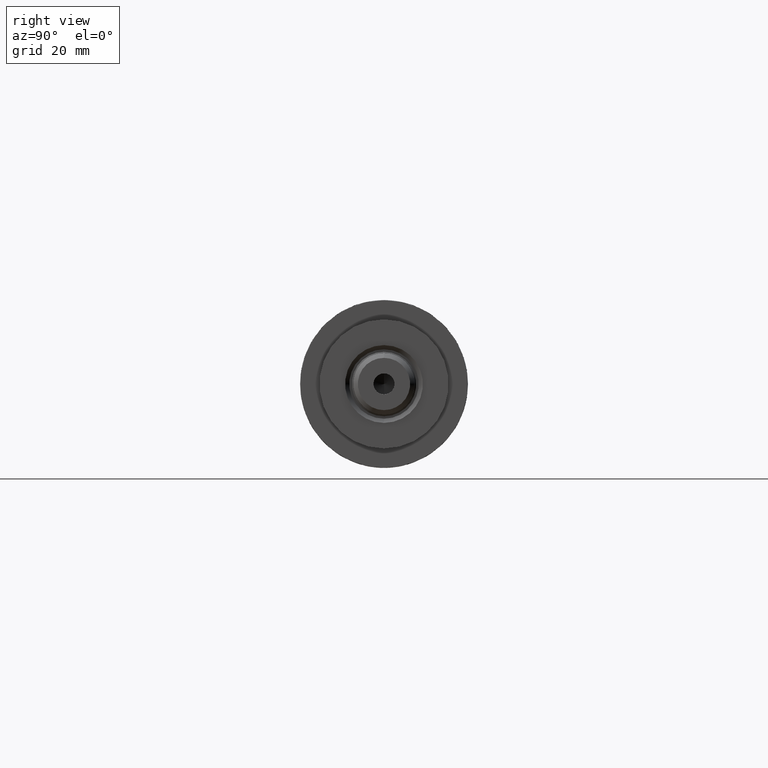
[diagram: clean part render]
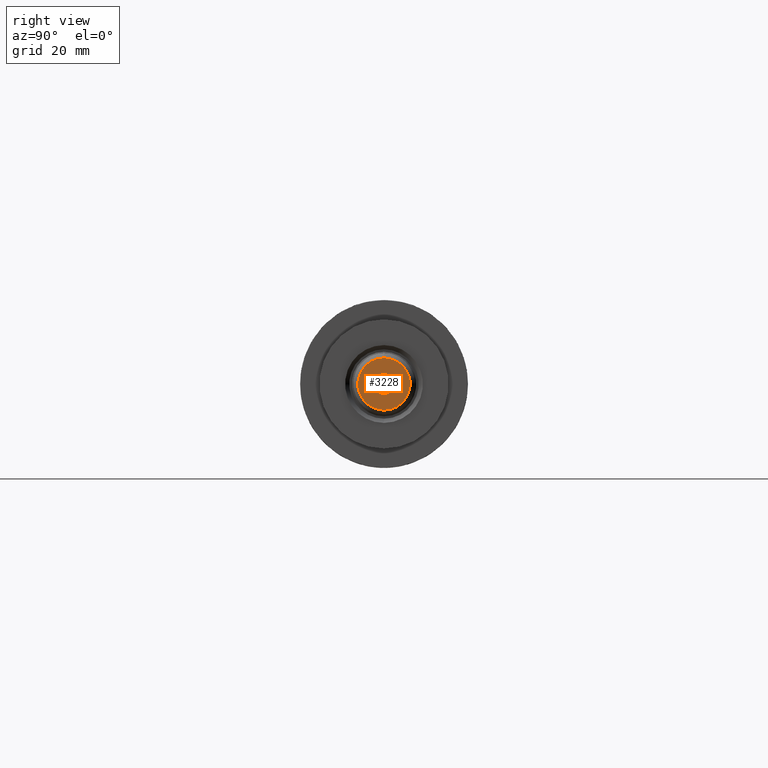
[diagram: same view with one face highlighted and labeled with its STEP entity id]
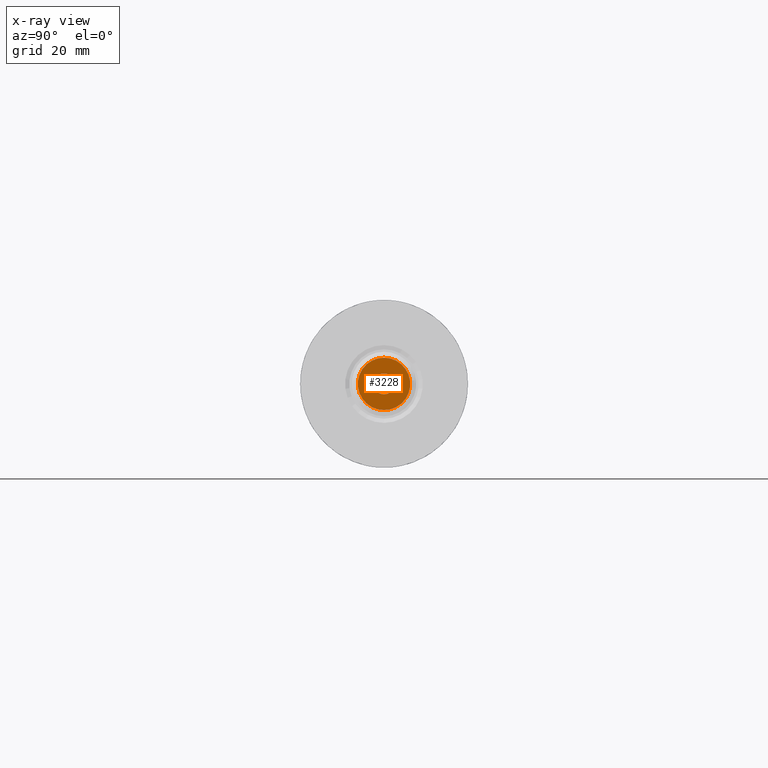
[diagram: x-ray of the same camera — body ghosted, the highlighted face saturated]
A machine part, right view. The second image highlights one B-rep face of the part: STEP entity #3228.
The next image is the same camera in x-ray: the body ghosted, the highlighted face saturated — about 0% of this face is hidden behind the body in this view.
In plain terms, the highlighted planar face has unit normal (1, 0, -0).
Its self-contained STEP definition (entity closure, byte-faithful):
#44 = DIRECTION ( 'NONE',  ( 1.000000000000000000, 0.000000000000000000, 0.000000000000000000 ) ) ;
#129 = CARTESIAN_POINT ( 'NONE',  ( 0.000000000000000000, 0.000000000000000000, 179.6000000000000512 ) ) ;
#333 = VERTEX_POINT ( 'NONE', #5140 ) ;
#343 = EDGE_LOOP ( 'NONE', ( #773, #4856 ) ) ;
#393 = DIRECTION ( 'NONE',  ( 1.000000000000000000, 0.000000000000000000, 0.000000000000000000 ) ) ;
#437 = DIRECTION ( 'NONE',  ( -0.000000000000000000, -0.000000000000000000, 1.000000000000000000 ) ) ;
#450 = CARTESIAN_POINT ( 'NONE',  ( -3.249999999999998224, 3.980102097228895766E-16, 179.6000000000000512 ) ) ;
#577 = CARTESIAN_POINT ( 'NONE',  ( 0.000000000000000000, 0.000000000000000000, 179.6000000000000512 ) ) ;
#773 = ORIENTED_EDGE ( 'NONE', *, *, #2924, .T. ) ;
#827 = CIRCLE ( 'NONE', #1494, 8.099999999999996092 ) ;
#982 = AXIS2_PLACEMENT_3D ( 'NONE', #129, #2050, #4251 ) ;
#991 = ORIENTED_EDGE ( 'NONE', *, *, #5185, .F. ) ;
#994 = CIRCLE ( 'NONE', #3425, 3.249999999999998224 ) ;
#1188 = CARTESIAN_POINT ( 'NONE',  ( 0.000000000000000000, 0.000000000000000000, 179.6000000000000512 ) ) ;
#1240 = FACE_BOUND ( 'NONE', #4510, .T. ) ;
#1435 = CARTESIAN_POINT ( 'NONE',  ( -8.099999999999996092, 0.000000000000000000, 179.6000000000000512 ) ) ;
#1492 = CIRCLE ( 'NONE', #4433, 8.099999999999996092 ) ;
#1494 = AXIS2_PLACEMENT_3D ( 'NONE', #1188, #1920, #393 ) ;
#1569 = DIRECTION ( 'NONE',  ( 1.000000000000000000, 0.000000000000000000, 0.000000000000000000 ) ) ;
#1908 = CARTESIAN_POINT ( 'NONE',  ( 0.000000000000000000, 0.000000000000000000, 179.6000000000000512 ) ) ;
#1920 = DIRECTION ( 'NONE',  ( 0.000000000000000000, 0.000000000000000000, 1.000000000000000000 ) ) ;
#2050 = DIRECTION ( 'NONE',  ( 0.000000000000000000, 0.000000000000000000, 1.000000000000000000 ) ) ;
#2088 = CARTESIAN_POINT ( 'NONE',  ( 3.249999999999998224, 0.000000000000000000, 179.6000000000000512 ) ) ;
#2123 = FACE_OUTER_BOUND ( 'NONE', #343, .T. ) ;
#2447 = PLANE ( 'NONE',  #982 ) ;
#2667 = VERTEX_POINT ( 'NONE', #2088 ) ;
#2924 = EDGE_CURVE ( 'NONE', #4850, #333, #827, .T. ) ;
#3228 = ADVANCED_FACE ( 'NONE', ( #2123, #1240 ), #2447, .T. ) ;
#3268 = EDGE_CURVE ( 'NONE', #2667, #4156, #994, .T. ) ;
#3305 = CARTESIAN_POINT ( 'NONE',  ( 0.000000000000000000, 0.000000000000000000, 179.6000000000000512 ) ) ;
#3425 = AXIS2_PLACEMENT_3D ( 'NONE', #577, #4973, #4176 ) ;
#3855 = AXIS2_PLACEMENT_3D ( 'NONE', #3305, #437, #44 ) ;
#4108 = CIRCLE ( 'NONE', #3855, 3.249999999999998224 ) ;
#4156 = VERTEX_POINT ( 'NONE', #450 ) ;
#4176 = DIRECTION ( 'NONE',  ( 1.000000000000000000, 0.000000000000000000, 0.000000000000000000 ) ) ;
#4251 = DIRECTION ( 'NONE',  ( 1.000000000000000000, 0.000000000000000000, -0.000000000000000000 ) ) ;
#4433 = AXIS2_PLACEMENT_3D ( 'NONE', #1908, #4780, #1569 ) ;
#4458 = ORIENTED_EDGE ( 'NONE', *, *, #3268, .F. ) ;
#4510 = EDGE_LOOP ( 'NONE', ( #4458, #991 ) ) ;
#4562 = EDGE_CURVE ( 'NONE', #333, #4850, #1492, .T. ) ;
#4780 = DIRECTION ( 'NONE',  ( 0.000000000000000000, 0.000000000000000000, 1.000000000000000000 ) ) ;
#4850 = VERTEX_POINT ( 'NONE', #1435 ) ;
#4856 = ORIENTED_EDGE ( 'NONE', *, *, #4562, .T. ) ;
#4973 = DIRECTION ( 'NONE',  ( -0.000000000000000000, -0.000000000000000000, 1.000000000000000000 ) ) ;
#5140 = CARTESIAN_POINT ( 'NONE',  ( 8.099999999999996092, 1.077689183249670605E-15, 179.6000000000000512 ) ) ;
#5185 = EDGE_CURVE ( 'NONE', #4156, #2667, #4108, .T. ) ;